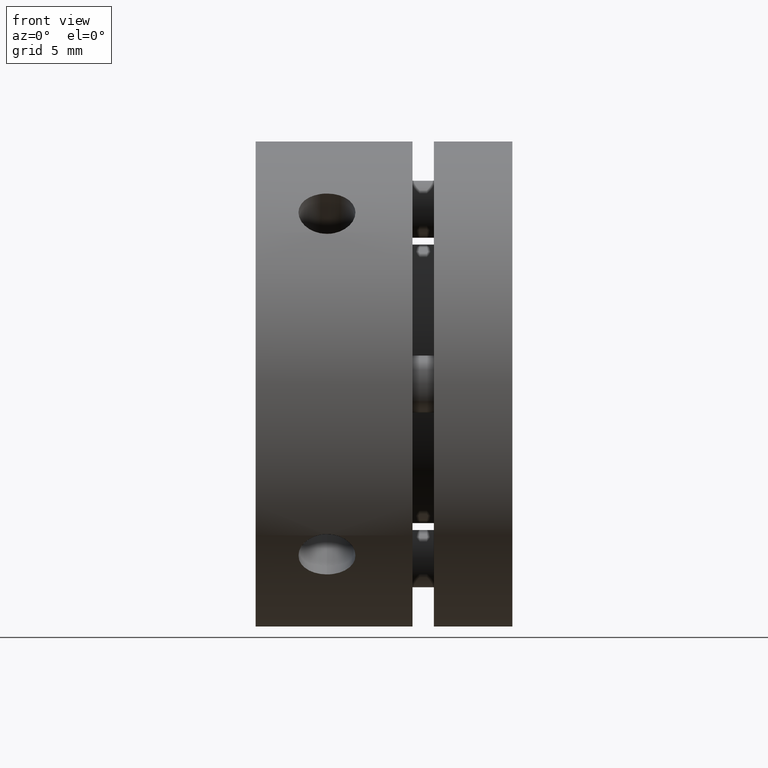
[diagram: clean part render]
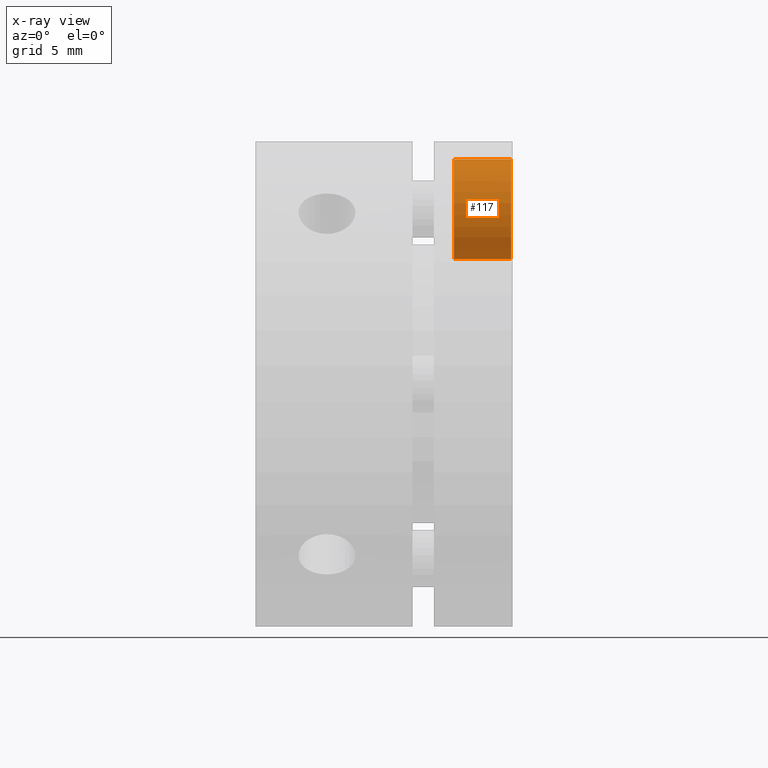
[diagram: x-ray — body ghosted, one internal face saturated and labeled with its STEP entity id]
A machine part, front view, then the same camera in x-ray: the body is ghosted and one INTERNAL B-rep face — a face not visible from any outside direction — is saturated and labeled: STEP entity #117.
In plain terms, the highlighted cylindrical surface (partial cylindrical patch) has radius 3.5 mm, axis along (-1, 0, -0).
Its self-contained STEP definition (entity closure, byte-faithful):
#117 = ADVANCED_FACE ( 'NONE', ( #367 ), #373, .T. ) ;
#367 = FACE_OUTER_BOUND ( 'NONE', #2577, .T. ) ;
#373 = CYLINDRICAL_SURFACE ( 'NONE', #643, 3.500000000000000000 ) ;
#385 = CIRCLE ( 'NONE', #592, 3.500000000000000000 ) ;
#417 = LINE ( 'NONE', #3159, #426 ) ;
#423 = CIRCLE ( 'NONE', #572, 3.500000000000000000 ) ;
#426 = VECTOR ( 'NONE', #3175, 1000.000000000000000 ) ;
#429 = LINE ( 'NONE', #3179, #431 ) ;
#431 = VECTOR ( 'NONE', #3180, 1000.000000000000000 ) ;
#572 = AXIS2_PLACEMENT_3D ( 'NONE', #3176, #3177, #3178 ) ;
#592 = AXIS2_PLACEMENT_3D ( 'NONE', #3135, #3136, #3137 ) ;
#643 = AXIS2_PLACEMENT_3D ( 'NONE', #3101, #3100, #3097 ) ;
#1233 = EDGE_CURVE ( 'NONE', #2717, #2773, #385, .T. ) ;
#1253 = EDGE_CURVE ( 'NONE', #2773, #2724, #417, .T. ) ;
#1254 = EDGE_CURVE ( 'NONE', #2793, #2724, #423, .T. ) ;
#1257 = EDGE_CURVE ( 'NONE', #2717, #2793, #429, .T. ) ;
#2000 = CARTESIAN_POINT ( 'NONE',  ( 4.286263797015736600E-016, 4.000000000000000000, 3.500000000000000000 ) ) ;
#2007 = CARTESIAN_POINT ( 'NONE',  ( 0.0000000000000000000, 0.0000000000000000000, -3.500000000000000000 ) ) ;
#2056 = CARTESIAN_POINT ( 'NONE',  ( 0.0000000000000000000, 4.000000000000000000, -3.500000000000000000 ) ) ;
#2076 = CARTESIAN_POINT ( 'NONE',  ( 4.286263797015736600E-016, 0.0000000000000000000, 3.500000000000000000 ) ) ;
#2263 = ORIENTED_EDGE ( 'NONE', *, *, #1233, .F. ) ;
#2264 = ORIENTED_EDGE ( 'NONE', *, *, #1257, .T. ) ;
#2267 = ORIENTED_EDGE ( 'NONE', *, *, #1253, .F. ) ;
#2389 = ORIENTED_EDGE ( 'NONE', *, *, #1254, .T. ) ;
#2577 = EDGE_LOOP ( 'NONE', ( #2263, #2264, #2389, #2267 ) ) ;
#2717 = VERTEX_POINT ( 'NONE', #2000 ) ;
#2724 = VERTEX_POINT ( 'NONE', #2007 ) ;
#2773 = VERTEX_POINT ( 'NONE', #2056 ) ;
#2793 = VERTEX_POINT ( 'NONE', #2076 ) ;
#3097 = DIRECTION ( 'NONE',  ( 0.0000000000000000000, 0.0000000000000000000, -1.000000000000000000 ) ) ;
#3100 = DIRECTION ( 'NONE',  ( -0.0000000000000000000, -1.000000000000000000, -0.0000000000000000000 ) ) ;
#3101 = CARTESIAN_POINT ( 'NONE',  ( 0.0000000000000000000, 4.000000000000000000, 0.0000000000000000000 ) ) ;
#3135 = CARTESIAN_POINT ( 'NONE',  ( 0.0000000000000000000, 4.000000000000000000, 0.0000000000000000000 ) ) ;
#3136 = DIRECTION ( 'NONE',  ( 0.0000000000000000000, 1.000000000000000000, 0.0000000000000000000 ) ) ;
#3137 = DIRECTION ( 'NONE',  ( 0.0000000000000000000, 0.0000000000000000000, 1.000000000000000000 ) ) ;
#3159 = CARTESIAN_POINT ( 'NONE',  ( 0.0000000000000000000, 4.000000000000000000, -3.500000000000000000 ) ) ;
#3175 = DIRECTION ( 'NONE',  ( -0.0000000000000000000, -1.000000000000000000, -0.0000000000000000000 ) ) ;
#3176 = CARTESIAN_POINT ( 'NONE',  ( 0.0000000000000000000, 0.0000000000000000000, 0.0000000000000000000 ) ) ;
#3177 = DIRECTION ( 'NONE',  ( 0.0000000000000000000, 1.000000000000000000, 0.0000000000000000000 ) ) ;
#3178 = DIRECTION ( 'NONE',  ( 0.0000000000000000000, 0.0000000000000000000, 1.000000000000000000 ) ) ;
#3179 = CARTESIAN_POINT ( 'NONE',  ( 4.286263797015736600E-016, 4.000000000000000000, 3.500000000000000000 ) ) ;
#3180 = DIRECTION ( 'NONE',  ( -0.0000000000000000000, -1.000000000000000000, -0.0000000000000000000 ) ) ;